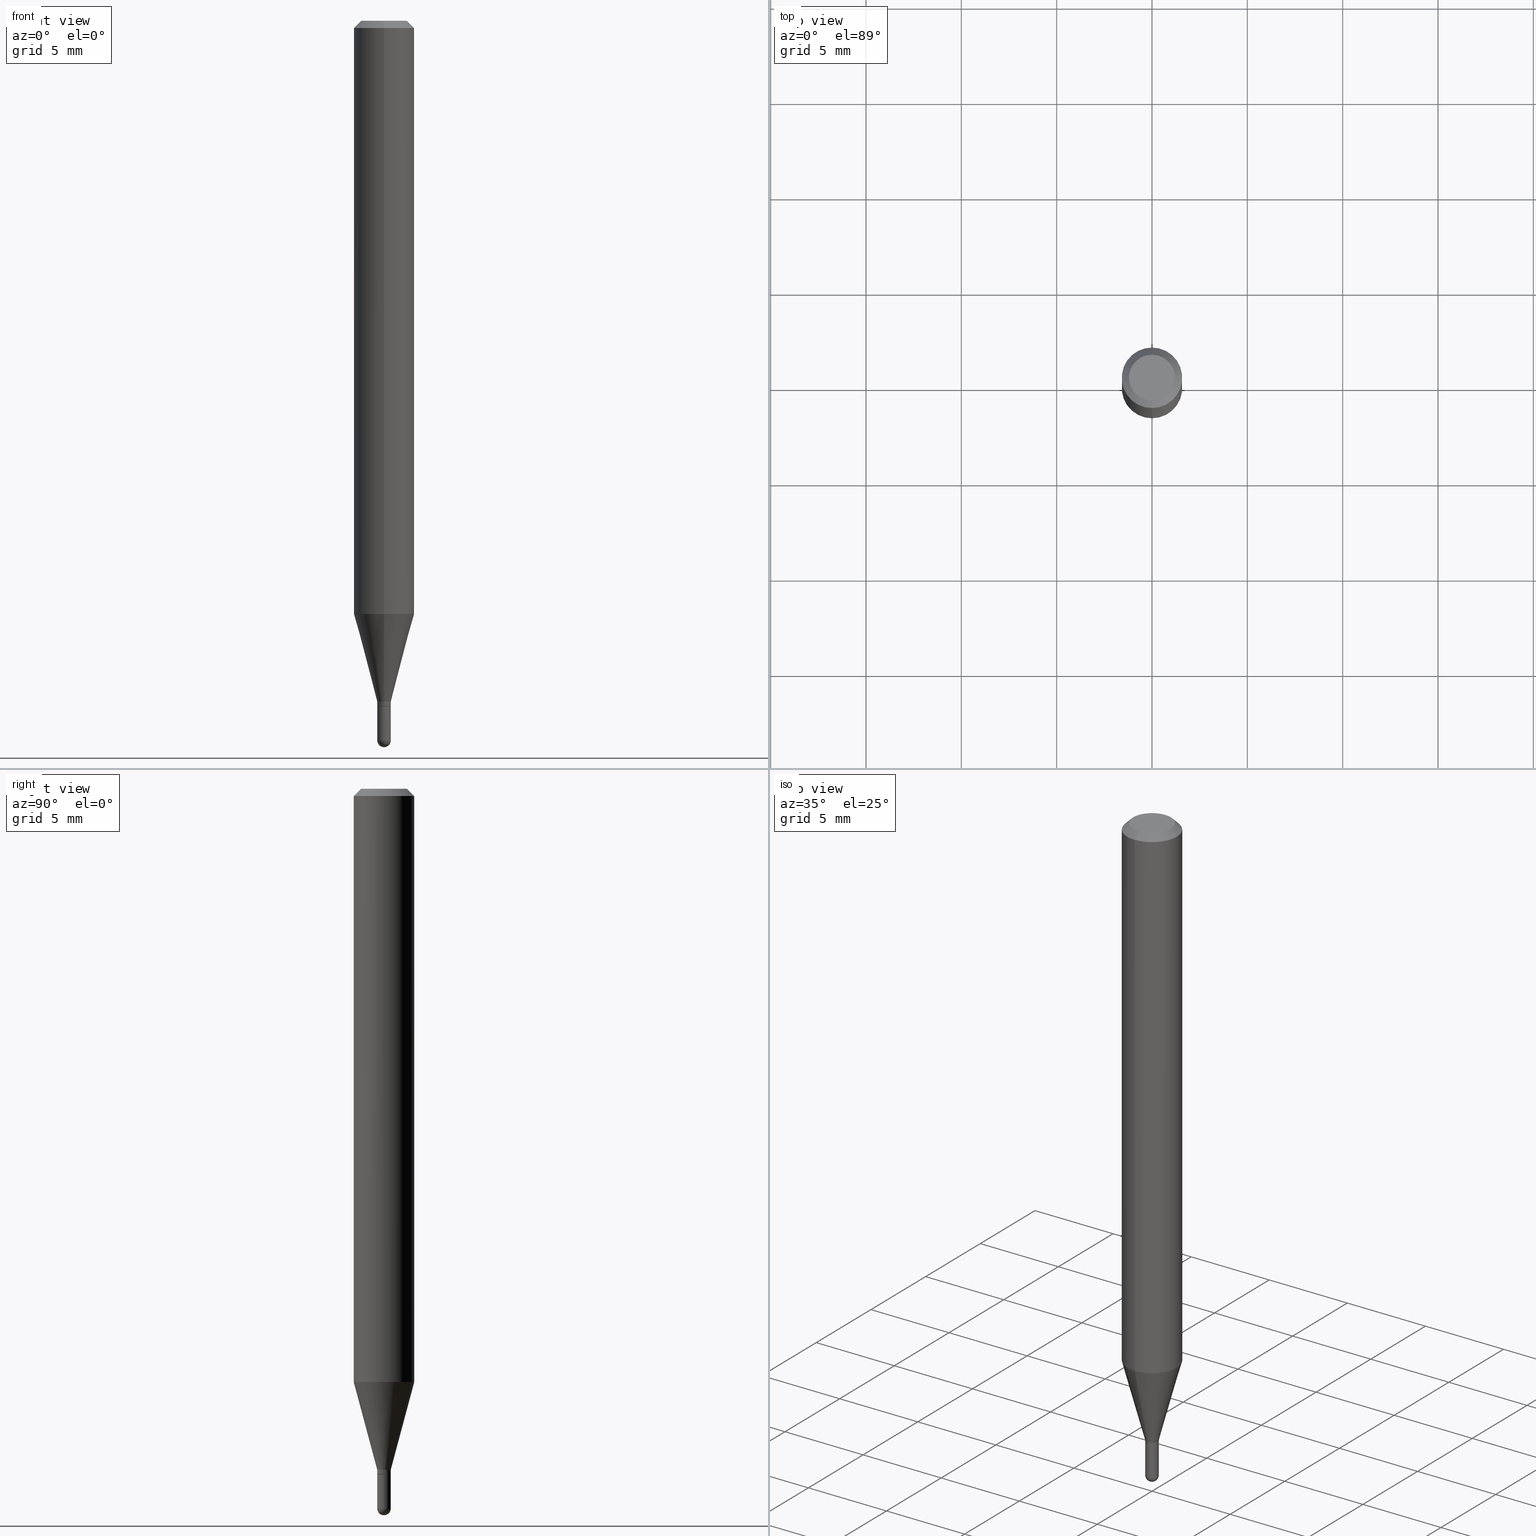
[diagram: canonical four-view strip — front | top / right | iso, engineering-drawing reading convention]
A machine part, canonical four-view strip (front | top / right | iso — engineering-drawing reading convention). The complete STEP part file that produces these views, byte-faithful:
ISO-10303-21;
HEADER;
FILE_DESCRIPTION (( 'STEP AP203' ),
    '1' );
FILE_NAME ('03126.STEP',
    '2024-03-08T18:16:44',
    ( '' ),
    ( '' ),
    'SwSTEP 2.0',
    'SolidWorks 2023',
    '' );
FILE_SCHEMA (( 'CONFIG_CONTROL_DESIGN' ));
ENDSEC;

DATA;
#1 = ADVANCED_FACE ( 'NONE', ( #456 ), #380, .T. ) ;
#2 = CONICAL_SURFACE ( 'NONE', #132, 0.01399999999999992396, 0.2617993877991504625 ) ;
#3 = AXIS2_PLACEMENT_3D ( 'NONE', #291, #495, #148 ) ;
#4 = AXIS2_PLACEMENT_3D ( 'NONE', #506, #35, #8 ) ;
#5 = EDGE_CURVE ( 'NONE', #348, #390, #247, .T. ) ;
#6 = PERSON_AND_ORGANIZATION_ROLE ( 'creator' ) ;
#7 = CALENDAR_DATE ( 2024, 8, 3 ) ;
#8 = DIRECTION ( 'NONE',  ( 1.000000000000000000, 0.000000000000000000, 0.000000000000000000 ) ) ;
#9 = CYLINDRICAL_SURFACE ( 'NONE', #173, 0.06250000000000000000 ) ;
#10 = ADVANCED_FACE ( 'NONE', ( #165 ), #117, .T. ) ;
#11 = DIRECTION ( 'NONE',  ( -2.445454428585171243E-29, 3.491501928384618052E-15, 1.000000000000000000 ) ) ;
#12 = VECTOR ( 'NONE', #136, 39.37007874015748143 ) ;
#13 = FACE_OUTER_BOUND ( 'NONE', #307, .T. ) ;
#14 = ORIENTED_EDGE ( 'NONE', *, *, #95, .F. ) ;
#15 = DIRECTION ( 'NONE',  ( -6.982962677686265133E-15, -1.000000000000000000, 0.000000000000000000 ) ) ;
#16 = ORIENTED_EDGE ( 'NONE', *, *, #434, .F. ) ;
#17 = MANIFOLD_SOLID_BREP ( 'Body-Move/Copy2[1]', #224 ) ;
#18 = ORIENTED_EDGE ( 'NONE', *, *, #102, .T. ) ;
#19 = CARTESIAN_POINT ( 'NONE',  ( 4.440892098500625669E-16, 0.06250000000000000000, -2.182188705240386283E-16 ) ) ;
#20 = ORIENTED_EDGE ( 'NONE', *, *, #436, .F. ) ;
#21 = FACE_OUTER_BOUND ( 'NONE', #206, .T. ) ;
#22 = EDGE_LOOP ( 'NONE', ( #293, #309 ) ) ;
#23 = DIRECTION ( 'NONE',  ( -6.982962677686266711E-15, -1.000000000000000000, 3.491501928384618447E-15 ) ) ;
#24 = AXIS2_PLACEMENT_3D ( 'NONE', #116, #32, #268 ) ;
#25 = ORIENTED_EDGE ( 'NONE', *, *, #171, .F. ) ;
#26 = AXIS2_PLACEMENT_3D ( 'NONE', #157, #84, #354 ) ;
#27 = CC_DESIGN_APPROVAL ( #204, ( #449 ) ) ;
#28 = CARTESIAN_POINT ( 'NONE',  ( 3.462763470876603465E-29, -4.943966730592620263E-15, -1.416000000000000147 ) ) ;
#29 = FACE_OUTER_BOUND ( 'NONE', #188, .T. ) ;
#30 = FACE_OUTER_BOUND ( 'NONE', #46, .T. ) ;
#31 = EDGE_CURVE ( 'NONE', #114, #325, #388, .T. ) ;
#32 = DIRECTION ( 'NONE',  ( -2.445468806185136597E-29, 3.491481338843145583E-15, 1.000000000000000000 ) ) ;
#33 = CARTESIAN_POINT ( 'NONE',  ( 0.000000000000000000, 0.000000000000000000, 0.000000000000000000 ) ) ;
#34 = CARTESIAN_POINT ( 'NONE',  ( 3.438308926590751733E-29, -4.909051711308774725E-15, -1.406000000000000139 ) ) ;
#35 = DIRECTION ( 'NONE',  ( 0.000000000000000000, 0.000000000000000000, 1.000000000000000000 ) ) ;
#36 = DIRECTION ( 'NONE',  ( -6.982962677686265133E-15, -1.000000000000000000, 0.000000000000000000 ) ) ;
#37 = VECTOR ( 'NONE', #507, 39.37007874015748854 ) ;
#38 = CIRCLE ( 'NONE', #389, 0.04749999999999999362 ) ;
#39 = DIRECTION ( 'NONE',  ( -2.445454428585171243E-29, 3.491501928384618052E-15, 1.000000000000000000 ) ) ;
#40 = EDGE_CURVE ( 'NONE', #512, #209, #125, .T. ) ;
#41 = ORIENTED_EDGE ( 'NONE', *, *, #420, .T. ) ;
#42 = EDGE_CURVE ( 'NONE', #473, #466, #207, .T. ) ;
#43 = CARTESIAN_POINT ( 'NONE',  ( 3.462763470876603465E-29, -4.943966730592620263E-15, -1.416000000000000147 ) ) ;
#44 = ORIENTED_EDGE ( 'NONE', *, *, #371, .F. ) ;
#45 = CIRCLE ( 'NONE', #60, 0.01399999999999981815 ) ;
#46 = EDGE_LOOP ( 'NONE', ( #274, #161, #186, #340 ) ) ;
#47 = ORIENTED_EDGE ( 'NONE', *, *, #176, .F. ) ;
#48 = PLANE ( 'NONE',  #432 ) ;
#49 = APPROVAL ( #278, 'UNSPECIFIED' ) ;
#50 = MECHANICAL_CONTEXT ( 'NONE', #72, 'mechanical' ) ;
#51 = CARTESIAN_POINT ( 'NONE',  ( 3.666407360070428684E-29, -5.239793766542928315E-15, -1.500000000000000222 ) ) ;
#52 = AXIS2_PLACEMENT_3D ( 'NONE', #92, #147, #492 ) ;
#53 = DESIGN_CONTEXT ( 'detailed design', #122, 'design' ) ;
#54 = DIRECTION ( 'NONE',  ( -2.445454428585171243E-29, 3.491501928384618052E-15, 1.000000000000000000 ) ) ;
#55 = APPLICATION_PROTOCOL_DEFINITION ( 'international standard', 'config_control_design', 1994, #72 ) ;
#56 = CARTESIAN_POINT ( 'NONE',  ( 3.840629472727447874E-16, 0.04749999999999999362, 7.364327909283748346E-17 ) ) ;
#57 = EDGE_CURVE ( 'NONE', #195, #335, #233, .T. ) ;
#58 = DATE_AND_TIME ( #399, #87 ) ;
#59 = CARTESIAN_POINT ( 'NONE',  ( 0.01400000000000000203, -5.041699053289501888E-15, -1.416000000000000147 ) ) ;
#60 = AXIS2_PLACEMENT_3D ( 'NONE', #386, #330, #153 ) ;
#61 = CARTESIAN_POINT ( 'NONE',  ( 9.947598300641348575E-17, 0.01399999999999992743, -4.888102699738439112E-17 ) ) ;
#62 = DIRECTION ( 'NONE',  ( -4.851104656540964275E-15, -0.7071067811865500152, -0.7071067811865450192 ) ) ;
#63 = CC_DESIGN_DATE_AND_TIME_ASSIGNMENT ( #135, #277, ( #353 ) ) ;
#64 = CARTESIAN_POINT ( 'NONE',  ( -0.01400000000000000203, 9.947598300641404042E-17, -6.886509126356868606E-31 ) ) ;
#65 = EDGE_LOOP ( 'NONE', ( #383, #379, #16, #66 ) ) ;
#66 = ORIENTED_EDGE ( 'NONE', *, *, #310, .F. ) ;
#67 = DIRECTION ( 'NONE',  ( -2.445454428585171243E-29, 3.491501928384618052E-15, 1.000000000000000000 ) ) ;
#68 = CARTESIAN_POINT ( 'NONE',  ( -5.856609535192501225E-45, 8.361784724711001985E-31, 2.394896206911068316E-16 ) ) ;
#69 = ORIENTED_EDGE ( 'NONE', *, *, #509, .T. ) ;
#70 = DIRECTION ( 'NONE',  ( -6.982962677686265922E-15, -1.000000000000000000, 3.491501928384618052E-15 ) ) ;
#71 = CARTESIAN_POINT ( 'NONE',  ( 3.462783829558154044E-29, -4.943937575801894533E-15, -1.416000000000000147 ) ) ;
#72 = APPLICATION_CONTEXT ( 'configuration controlled 3d designs of mechanical parts and assemblies' ) ;
#73 = DIRECTION ( 'NONE',  ( -2.445454428585171243E-29, 3.491501928384618052E-15, 1.000000000000000000 ) ) ;
#74 = AXIS2_PLACEMENT_3D ( 'NONE', #34, #378, #504 ) ;
#75 = ORGANIZATION ( 'UNSPECIFIED', 'UNSPECIFIED', '' ) ;
#76 = EDGE_CURVE ( 'NONE', #272, #130, #453, .T. ) ;
#77 = DIRECTION ( 'NONE',  ( 1.000000000000000000, -6.982962677686266711E-15, 4.876176775795935232E-29 ) ) ;
#78 = ORIENTED_EDGE ( 'NONE', *, *, #355, .T. ) ;
#79 = FACE_OUTER_BOUND ( 'NONE', #159, .T. ) ;
#80 = ADVANCED_FACE ( 'NONE', ( #144 ), #98, .F. ) ;
#81 = ORIENTED_EDGE ( 'NONE', *, *, #429, .T. ) ;
#82 = DIRECTION ( 'NONE',  ( -6.982962677686265133E-15, -1.000000000000000000, 0.000000000000000000 ) ) ;
#83 = ORIENTED_EDGE ( 'NONE', *, *, #328, .T. ) ;
#84 = DIRECTION ( 'NONE',  ( -2.445468806185136597E-29, 3.491481338843145583E-15, 1.000000000000000000 ) ) ;
#85 = CONICAL_SURFACE ( 'NONE', #360, 0.06250000000000000000, 0.7853981633974483900 ) ;
#86 = CARTESIAN_POINT ( 'NONE',  ( 4.364351673553919652E-16, 0.06249999999999995143, -0.01499999999999997863 ) ) ;
#87 = LOCAL_TIME ( 13, 16, 44.00000000000000000, #400 ) ;
#88 = EDGE_CURVE ( 'NONE', #465, #124, #312, .T. ) ;
#89 = AXIS2_PLACEMENT_3D ( 'NONE', #175, #326, #483 ) ;
#90 = VECTOR ( 'NONE', #339, 39.37007874015748143 ) ;
#91 = ADVANCED_FACE ( 'NONE', ( #488 ), #2, .T. ) ;
#92 = CARTESIAN_POINT ( 'NONE',  ( 3.668181642877698501E-31, -5.237252892576844199E-17, -0.01499999999999976179 ) ) ;
#93 = CARTESIAN_POINT ( 'NONE',  ( 2.717825964282703634E-16, 0.01399999999999501643, -1.406000000000000139 ) ) ;
#94 = APPROVAL_ROLE ( '' ) ;
#95 = EDGE_CURVE ( 'NONE', #325, #114, #163, .T. ) ;
#96 = APPROVAL_DATE_TIME ( #444, #49 ) ;
#97 = APPROVAL_PERSON_ORGANIZATION ( #362, #443, #137 ) ;
#98 = PLANE ( 'NONE',  #150 ) ;
#99 = APPROVAL_DATE_TIME ( #365, #443 ) ;
#100 = DIRECTION ( 'NONE',  ( -2.445454428585171243E-29, 3.491501928384618052E-15, 1.000000000000000000 ) ) ;
#101 = DIRECTION ( 'NONE',  ( -2.445454428585170963E-29, 3.491501928384618052E-15, 1.000000000000000000 ) ) ;
#102 = EDGE_CURVE ( 'NONE', #390, #473, #358, .T. ) ;
#103 = AXIS2_PLACEMENT_3D ( 'NONE', #338, #503, #297 ) ;
#104 = AXIS2_PLACEMENT_3D ( 'NONE', #43, #143, #248 ) ;
#105 = DIRECTION ( 'NONE',  ( -6.982962677686265133E-15, -1.000000000000000000, 3.491501928384617658E-15 ) ) ;
#106 = APPROVAL_PERSON_ORGANIZATION ( #319, #204, #279 ) ;
#107 = LINE ( 'NONE', #490, #322 ) ;
#108 = ORIENTED_EDGE ( 'NONE', *, *, #76, .T. ) ;
#109 = ORIENTED_EDGE ( 'NONE', *, *, #342, .T. ) ;
#110 = CARTESIAN_POINT ( 'NONE',  ( 3.668181642877698501E-31, -5.237252892576844199E-17, -0.01499999999999976179 ) ) ;
#111 = ORIENTED_EDGE ( 'NONE', *, *, #394, .F. ) ;
#112 = CARTESIAN_POINT ( 'NONE',  ( 0.000000000000000000, 0.000000000000000000, 0.000000000000000000 ) ) ;
#113 = ORIENTED_EDGE ( 'NONE', *, *, #5, .F. ) ;
#114 = VERTEX_POINT ( 'NONE', #59 ) ;
#115 = ADVANCED_FACE ( 'NONE', ( #13 ), #489, .F. ) ;
#116 = CARTESIAN_POINT ( 'NONE',  ( 3.633966645991114301E-29, -5.188341269520916077E-15, -1.486000000000000432 ) ) ;
#117 = CONICAL_SURFACE ( 'NONE', #190, 0.01350000000000000158, 0.7853981633974739252 ) ;
#118 = DIRECTION ( 'NONE',  ( -6.982962677686265133E-15, -1.000000000000000000, 0.000000000000000000 ) ) ;
#119 = AXIS2_PLACEMENT_3D ( 'NONE', #258, #198, #413 ) ;
#120 = ORIENTED_EDGE ( 'NONE', *, *, #166, .F. ) ;
#121 = APPROVAL_PERSON_ORGANIZATION ( #442, #49, #94 ) ;
#122 = APPLICATION_CONTEXT ( 'configuration controlled 3d designs of mechanical parts and assemblies' ) ;
#123 = CARTESIAN_POINT ( 'NONE',  ( -5.856609535192501225E-45, 8.361784724711001985E-31, 2.394896206911068316E-16 ) ) ;
#124 = VERTEX_POINT ( 'NONE', #480 ) ;
#125 = CIRCLE ( 'NONE', #103, 0.06250000000000000000 ) ;
#126 = DIRECTION ( 'NONE',  ( -2.445454428585170963E-29, 3.491501928384618052E-15, 1.000000000000000000 ) ) ;
#127 = DIRECTION ( 'NONE',  ( 1.000000000000000000, -6.982962677686265922E-15, 4.883557194083112340E-29 ) ) ;
#128 = EDGE_CURVE ( 'NONE', #465, #162, #181, .T. ) ;
#129 = CARTESIAN_POINT ( 'NONE',  ( 9.947598300644785050E-17, 0.01399999999999501643, -1.406000000000000139 ) ) ;
#130 = VERTEX_POINT ( 'NONE', #220 ) ;
#131 = DIRECTION ( 'NONE',  ( -6.982962677686265922E-15, -1.000000000000000000, 4.370956789862821150E-15 ) ) ;
#132 = AXIS2_PLACEMENT_3D ( 'NONE', #141, #100, #251 ) ;
#133 = AXIS2_PLACEMENT_3D ( 'NONE', #344, #303, #82 ) ;
#134 = ORIENTED_EDGE ( 'NONE', *, *, #249, .T. ) ;
#135 = DATE_AND_TIME ( #439, #486 ) ;
#136 = DIRECTION ( 'NONE',  ( -4.937700262164674260E-15, -0.7071067811865632269, 0.7071067811865319186 ) ) ;
#137 = APPROVAL_ROLE ( '' ) ;
#138 = DIRECTION ( 'NONE',  ( -6.982962677686266711E-15, -1.000000000000000000, 3.491501928384618447E-15 ) ) ;
#139 = COORDINATED_UNIVERSAL_TIME_OFFSET ( 5, 0, .BEHIND. ) ;
#140 = AXIS2_PLACEMENT_3D ( 'NONE', #415, #67, #226 ) ;
#141 = CARTESIAN_POINT ( 'NONE',  ( 3.438308926590751733E-29, -4.909051711308774725E-15, -1.406000000000000139 ) ) ;
#142 = PERSON_AND_ORGANIZATION_ROLE ( 'design_owner' ) ;
#143 = DIRECTION ( 'NONE',  ( -2.445454428585171243E-29, 3.491501928384618052E-15, 1.000000000000000000 ) ) ;
#144 = FACE_OUTER_BOUND ( 'NONE', #257, .T. ) ;
#145 = VERTEX_POINT ( 'NONE', #51 ) ;
#146 = CC_DESIGN_PERSON_AND_ORGANIZATION_ASSIGNMENT ( #479, #211, ( #447 ) ) ;
#147 = DIRECTION ( 'NONE',  ( -2.445454428585171243E-29, 3.491501928384618052E-15, 1.000000000000000000 ) ) ;
#148 = DIRECTION ( 'NONE',  ( -6.982962677686265133E-15, -1.000000000000000000, 0.000000000000000000 ) ) ;
#149 = VERTEX_POINT ( 'NONE', #370 ) ;
#150 = AXIS2_PLACEMENT_3D ( 'NONE', #440, #324, #320 ) ;
#151 = CIRCLE ( 'NONE', #119, 0.01399999999999981815 ) ;
#152 = EDGE_LOOP ( 'NONE', ( #350, #83, #223, #493 ) ) ;
#153 = DIRECTION ( 'NONE',  ( -6.982962677686265133E-15, -1.000000000000000000, 0.000000000000000000 ) ) ;
#154 = DIRECTION ( 'NONE',  ( 2.445454428585171243E-29, -3.491501928384618052E-15, -1.000000000000000000 ) ) ;
#155 = EDGE_CURVE ( 'NONE', #149, #335, #267, .T. ) ;
#156 = EDGE_LOOP ( 'NONE', ( #332, #284, #505, #311 ) ) ;
#157 = CARTESIAN_POINT ( 'NONE',  ( 0.000000000000000000, 0.000000000000000000, 0.000000000000000000 ) ) ;
#158 = DIRECTION ( 'NONE',  ( -2.445468806185136877E-29, 3.491481338843145188E-15, 1.000000000000000000 ) ) ;
#159 = EDGE_LOOP ( 'NONE', ( #134, #41, #183, #44 ) ) ;
#160 = DIRECTION ( 'NONE',  ( -2.445454428585171243E-29, 3.491501928384618052E-15, 1.000000000000000000 ) ) ;
#161 = ORIENTED_EDGE ( 'NONE', *, *, #176, .T. ) ;
#162 = VERTEX_POINT ( 'NONE', #93 ) ;
#163 = CIRCLE ( 'NONE', #286, 0.01400000000000000203 ) ;
#164 = ADVANCED_BREP_SHAPE_REPRESENTATION ( '03126', ( #17, #205, #4 ), #496 ) ;
#165 = FACE_OUTER_BOUND ( 'NONE', #242, .T. ) ;
#166 = EDGE_CURVE ( 'NONE', #237, #124, #245, .T. ) ;
#167 = AXIS2_PLACEMENT_3D ( 'NONE', #28, #39, #36 ) ;
#168 = AXIS2_PLACEMENT_3D ( 'NONE', #261, #73, #327 ) ;
#169 = LOCAL_TIME ( 13, 16, 44.00000000000000000, #246 ) ;
#170 = ADVANCED_FACE ( 'NONE', ( #318 ), #426, .T. ) ;
#171 = EDGE_CURVE ( 'NONE', #124, #465, #275, .T. ) ;
#172 = FACE_OUTER_BOUND ( 'NONE', #22, .T. ) ;
#173 = AXIS2_PLACEMENT_3D ( 'NONE', #502, #296, #70 ) ;
#174 = COORDINATED_UNIVERSAL_TIME_OFFSET ( 5, 0, .BEHIND. ) ;
#175 = CARTESIAN_POINT ( 'NONE',  ( 3.461540743662310234E-29, -4.942220979628426685E-15, -1.415500000000000203 ) ) ;
#176 = EDGE_CURVE ( 'NONE', #130, #209, #410, .T. ) ;
#177 = DIRECTION ( 'NONE',  ( -6.982962677686265922E-15, -1.000000000000000000, 4.370956789862821150E-15 ) ) ;
#178 = CALENDAR_DATE ( 2024, 8, 3 ) ;
#179 = AXIS2_PLACEMENT_3D ( 'NONE', #112, #229, #77 ) ;
#180 = PERSON_AND_ORGANIZATION ( #270, #75 ) ;
#181 = LINE ( 'NONE', #61, #331 ) ;
#182 = CC_DESIGN_PERSON_AND_ORGANIZATION_ASSIGNMENT ( #364, #6, ( #449 ) ) ;
#183 = ORIENTED_EDGE ( 'NONE', *, *, #271, .F. ) ;
#184 = CARTESIAN_POINT ( 'NONE',  ( 2.995670758099655086E-29, -4.277074275623154281E-15, -1.224995535832910099 ) ) ;
#185 = DIRECTION ( 'NONE',  ( 6.982962677686265922E-15, 1.000000000000000000, -3.483106191921935554E-15 ) ) ;
#186 = ORIENTED_EDGE ( 'NONE', *, *, #271, .T. ) ;
#187 = DIRECTION ( 'NONE',  ( -2.445468806185136597E-29, 3.491481338843145583E-15, 1.000000000000000000 ) ) ;
#188 = EDGE_LOOP ( 'NONE', ( #329, #430, #372, #254 ) ) ;
#189 = CARTESIAN_POINT ( 'NONE',  ( 4.440892098500927901E-16, 0.06249999999999995837, -0.01499999999999997863 ) ) ;
#190 = AXIS2_PLACEMENT_3D ( 'NONE', #377, #460, #418 ) ;
#191 = CIRCLE ( 'NONE', #74, 0.01399999999999992396 ) ;
#192 = ORIENTED_EDGE ( 'NONE', *, *, #128, .F. ) ;
#193 = LOCAL_TIME ( 13, 16, 44.00000000000000000, #139 ) ;
#194 = DIRECTION ( 'NONE',  ( -2.445454428585171243E-29, 3.491501928384618052E-15, 1.000000000000000000 ) ) ;
#195 = VERTEX_POINT ( 'NONE', #374 ) ;
#196 = DIRECTION ( 'NONE',  ( 1.000000000000000000, -6.982962677686262766E-15, 0.000000000000000000 ) ) ;
#197 = CARTESIAN_POINT ( 'NONE',  ( 9.769962616704812848E-17, 0.01349999999999505935, -1.416000000000000147 ) ) ;
#198 = DIRECTION ( 'NONE',  ( 1.000000000000000000, -7.105427357601001070E-15, 4.926315508542082329E-29 ) ) ;
#199 = ORIENTED_EDGE ( 'NONE', *, *, #5, .T. ) ;
#200 = DIRECTION ( 'NONE',  ( -2.445454428585171243E-29, 3.491501928384618052E-15, 1.000000000000000000 ) ) ;
#201 = LINE ( 'NONE', #227, #301 ) ;
#202 = DIRECTION ( 'NONE',  ( -2.445468806185136597E-29, 3.491481338843145583E-15, 1.000000000000000000 ) ) ;
#203 = AXIS2_PLACEMENT_3D ( 'NONE', #298, #194, #118 ) ;
#204 = APPROVAL ( #487, 'UNSPECIFIED' ) ;
#205 = MANIFOLD_SOLID_BREP ( 'Body-Move/Copy2[2]', #366 ) ;
#206 = EDGE_LOOP ( 'NONE', ( #111, #469, #501, #78, #14 ) ) ;
#207 = CIRCLE ( 'NONE', #24, 0.01400000000000000203 ) ;
#208 = VECTOR ( 'NONE', #458, 39.37007874015748143 ) ;
#209 = VERTEX_POINT ( 'NONE', #290 ) ;
#210 = ADVANCED_FACE ( 'NONE', ( #457 ), #419, .T. ) ;
#211 = PERSON_AND_ORGANIZATION_ROLE ( 'design_supplier' ) ;
#212 = DIRECTION ( 'NONE',  ( -2.445468806185136597E-29, 3.491481338843145583E-15, 1.000000000000000000 ) ) ;
#213 = CARTESIAN_POINT ( 'NONE',  ( -9.776147748757074722E-17, -0.01400000000000510038, -1.486000000000000432 ) ) ;
#214 = ORIENTED_EDGE ( 'NONE', *, *, #455, .T. ) ;
#215 = APPROVAL_STATUS ( 'not_yet_approved' ) ;
#216 = DIRECTION ( 'NONE',  ( 1.000000000000000000, -6.982962677686265922E-15, 4.883557194083112340E-29 ) ) ;
#217 = ADVANCED_FACE ( 'NONE', ( #333 ), #499, .T. ) ;
#218 = CARTESIAN_POINT ( 'NONE',  ( 3.316907271900976096E-16, 0.04749999999999999362, -4.610153125271590767E-17 ) ) ;
#219 = CIRCLE ( 'NONE', #255, 0.06250000000000000000 ) ;
#220 = CARTESIAN_POINT ( 'NONE',  ( -3.773273898774340269E-16, -0.04749999999999999362, 4.053359622893761920E-16 ) ) ;
#221 = EDGE_LOOP ( 'NONE', ( #422, #214, #498, #302 ) ) ;
#222 = LINE ( 'NONE', #19, #90 ) ;
#223 = ORIENTED_EDGE ( 'NONE', *, *, #42, .F. ) ;
#224 = CLOSED_SHELL ( 'NONE', ( #217, #260, #80, #441, #484 ) ) ;
#225 = ORIENTED_EDGE ( 'NONE', *, *, #240, .T. ) ;
#226 = DIRECTION ( 'NONE',  ( -6.982962677686265133E-15, -1.000000000000000000, 3.491501928384617658E-15 ) ) ;
#227 = CARTESIAN_POINT ( 'NONE',  ( 0.01400000000000000203, -9.776147748760774973E-17, 6.826647486114310706E-31 ) ) ;
#228 = ORIENTED_EDGE ( 'NONE', *, *, #316, .T. ) ;
#229 = DIRECTION ( 'NONE',  ( -2.445468806185136597E-29, 3.491481338843145583E-15, 1.000000000000000000 ) ) ;
#230 = AXIS2_PLACEMENT_3D ( 'NONE', #123, #11, #138 ) ;
#231 = ORIENTED_EDGE ( 'NONE', *, *, #76, .F. ) ;
#232 = LINE ( 'NONE', #384, #446 ) ;
#233 = LINE ( 'NONE', #385, #37 ) ;
#234 = DIRECTION ( 'NONE',  ( -2.445454428585170963E-29, 3.491501928384618052E-15, 1.000000000000000000 ) ) ;
#235 = ADVANCED_FACE ( 'NONE', ( #172 ), #48, .F. ) ;
#236 = ORIENTED_EDGE ( 'NONE', *, *, #328, .F. ) ;
#237 = VERTEX_POINT ( 'NONE', #304 ) ;
#238 = CARTESIAN_POINT ( 'NONE',  ( 3.462763470876603465E-29, -4.943966730592620263E-15, -1.416000000000000147 ) ) ;
#239 = VECTOR ( 'NONE', #349, 39.37007874015748854 ) ;
#240 = EDGE_CURVE ( 'NONE', #272, #512, #467, .T. ) ;
#241 = AXIS2_PLACEMENT_3D ( 'NONE', #308, #127, #397 ) ;
#242 = EDGE_LOOP ( 'NONE', ( #109, #273, #25, #120 ) ) ;
#243 = FACE_OUTER_BOUND ( 'NONE', #152, .T. ) ;
#244 = CC_DESIGN_PERSON_AND_ORGANIZATION_ASSIGNMENT ( #357, #142, ( #475 ) ) ;
#245 = LINE ( 'NONE', #359, #12 ) ;
#246 = COORDINATED_UNIVERSAL_TIME_OFFSET ( 5, 0, .BEHIND. ) ;
#247 = CIRCLE ( 'NONE', #321, 0.01400000000000000203 ) ;
#248 = DIRECTION ( 'NONE',  ( -6.982962677686265133E-15, -1.000000000000000000, 0.000000000000000000 ) ) ;
#249 = EDGE_CURVE ( 'NONE', #335, #149, #219, .T. ) ;
#250 = COORDINATED_UNIVERSAL_TIME_OFFSET ( 5, 0, .BEHIND. ) ;
#251 = DIRECTION ( 'NONE',  ( -6.982962677686265133E-15, -1.000000000000000000, 0.000000000000000000 ) ) ;
#252 = PERSON_AND_ORGANIZATION_ROLE ( 'creator' ) ;
#253 = DIRECTION ( 'NONE',  ( 1.000000000000000000, -6.982962677686262766E-15, 0.000000000000000000 ) ) ;
#254 = ORIENTED_EDGE ( 'NONE', *, *, #57, .F. ) ;
#255 = AXIS2_PLACEMENT_3D ( 'NONE', #393, #435, #131 ) ;
#256 = CARTESIAN_POINT ( 'NONE',  ( -0.01400000000000000203, -4.966663439654990402E-15, -1.416000000000000147 ) ) ;
#257 = EDGE_LOOP ( 'NONE', ( #471, #511 ) ) ;
#258 = CARTESIAN_POINT ( 'NONE',  ( 3.632769413186262372E-29, -5.190055775039722047E-15, -1.486000000000000210 ) ) ;
#259 = EDGE_LOOP ( 'NONE', ( #47, #231, #225, #474 ) ) ;
#260 = ADVANCED_FACE ( 'NONE', ( #477 ), #317, .T. ) ;
#261 = CARTESIAN_POINT ( 'NONE',  ( 0.000000000000000000, 0.000000000000000000, 0.000000000000000000 ) ) ;
#262 =( CONVERSION_BASED_UNIT ( 'INCH', #292 ) LENGTH_UNIT ( ) NAMED_UNIT ( #391 ) );
#263 = ORIENTED_EDGE ( 'NONE', *, *, #355, .F. ) ;
#264 = DIRECTION ( 'NONE',  ( 2.445454428585171243E-29, -3.491501928384618052E-15, -1.000000000000000000 ) ) ;
#265 = EDGE_LOOP ( 'NONE', ( #236, #69, #113, #295 ) ) ;
#266 = CIRCLE ( 'NONE', #3, 0.01350000000000000158 ) ;
#267 = CIRCLE ( 'NONE', #437, 0.06250000000000000000 ) ;
#268 = DIRECTION ( 'NONE',  ( 1.000000000000000000, -6.982962677686262766E-15, 0.000000000000000000 ) ) ;
#269 = FACE_OUTER_BOUND ( 'NONE', #259, .T. ) ;
#270 = PERSON ( 'UNSPECIFIED', 'UNSPECIFIED', 'UNSPECIFIED', ('UNSPECIFIED'), ('UNSPECIFIED'), ('UNSPECIFIED') ) ;
#271 = EDGE_CURVE ( 'NONE', #209, #512, #470, .T. ) ;
#272 = VERTEX_POINT ( 'NONE', #56 ) ;
#273 = ORIENTED_EDGE ( 'NONE', *, *, #407, .T. ) ;
#274 = ORIENTED_EDGE ( 'NONE', *, *, #429, .F. ) ;
#275 = CIRCLE ( 'NONE', #133, 0.01399999999999992743 ) ;
#276 = EDGE_CURVE ( 'NONE', #466, #348, #395, .T. ) ;
#277 = DATE_TIME_ROLE ( 'classification_date' ) ;
#278 = APPROVAL_STATUS ( 'not_yet_approved' ) ;
#279 = APPROVAL_ROLE ( '' ) ;
#280 = CARTESIAN_POINT ( 'NONE',  ( 3.462783829558154044E-29, -4.943937575801894533E-15, -1.416000000000000147 ) ) ;
#281 = APPROVAL_DATE_TIME ( #58, #204 ) ;
#282 = CARTESIAN_POINT ( 'NONE',  ( 3.633966645991114301E-29, -5.188341269520916077E-15, -1.486000000000000432 ) ) ;
#283 = CARTESIAN_POINT ( 'NONE',  ( 0.01400000000000000203, -5.163900900149012660E-15, -1.486000000000000432 ) ) ;
#284 = ORIENTED_EDGE ( 'NONE', *, *, #155, .T. ) ;
#285 = ADVANCED_FACE ( 'NONE', ( #269 ), #402, .T. ) ;
#286 = AXIS2_PLACEMENT_3D ( 'NONE', #280, #212, #253 ) ;
#287 = CARTESIAN_POINT ( 'NONE',  ( 9.947598300644776422E-17, 0.01399999999999493837, -1.415500000000000203 ) ) ;
#288 = LOCAL_TIME ( 13, 16, 44.00000000000000000, #174 ) ;
#289 = ORIENTED_EDGE ( 'NONE', *, *, #394, .T. ) ;
#290 = CARTESIAN_POINT ( 'NONE',  ( -4.364351673553912750E-16, -0.06250000000000005551, -0.01499999999999954321 ) ) ;
#291 = CARTESIAN_POINT ( 'NONE',  ( 3.462763470876603465E-29, -4.943966730592620263E-15, -1.416000000000000147 ) ) ;
#292 = LENGTH_MEASURE_WITH_UNIT ( LENGTH_MEASURE( 0.02539999999999999897 ), #376 );
#293 = ORIENTED_EDGE ( 'NONE', *, *, #342, .F. ) ;
#294 = LINE ( 'NONE', #461, #208 ) ;
#295 = ORIENTED_EDGE ( 'NONE', *, *, #276, .F. ) ;
#296 = DIRECTION ( 'NONE',  ( -2.445454428585171243E-29, 3.491501928384618052E-15, 1.000000000000000000 ) ) ;
#297 = DIRECTION ( 'NONE',  ( -6.982962677686265922E-15, -1.000000000000000000, 3.483106191921935554E-15 ) ) ;
#298 = CARTESIAN_POINT ( 'NONE',  ( 3.438308926590751733E-29, -4.909051711308774725E-15, -1.406000000000000139 ) ) ;
#299 = ORIENTED_EDGE ( 'NONE', *, *, #316, .F. ) ;
#300 = ADVANCED_FACE ( 'NONE', ( #79 ), #421, .T. ) ;
#301 = VECTOR ( 'NONE', #508, 39.37007874015748143 ) ;
#302 = ORIENTED_EDGE ( 'NONE', *, *, #88, .F. ) ;
#303 = DIRECTION ( 'NONE',  ( -2.445454428585171243E-29, 3.491501928384618052E-15, 1.000000000000000000 ) ) ;
#304 = CARTESIAN_POINT ( 'NONE',  ( -9.426999614872997108E-17, -0.01350000000000494554, -1.416000000000000147 ) ) ;
#305 = EDGE_LOOP ( 'NONE', ( #18, #289, #412, #263, #199 ) ) ;
#306 = AXIS2_PLACEMENT_3D ( 'NONE', #110, #264, #185 ) ;
#307 = EDGE_LOOP ( 'NONE', ( #108, #81 ) ) ;
#308 = CARTESIAN_POINT ( 'NONE',  ( 3.632769413186262372E-29, -5.190055775039722047E-15, -1.486000000000000210 ) ) ;
#309 = ORIENTED_EDGE ( 'NONE', *, *, #455, .F. ) ;
#310 = EDGE_CURVE ( 'NONE', #124, #195, #232, .T. ) ;
#311 = ORIENTED_EDGE ( 'NONE', *, *, #40, .F. ) ;
#312 = CIRCLE ( 'NONE', #89, 0.01399999999999992743 ) ;
#313 = AXIS2_PLACEMENT_3D ( 'NONE', #491, #216, #315 ) ;
#314 = CALENDAR_DATE ( 2024, 8, 3 ) ;
#315 = DIRECTION ( 'NONE',  ( -6.982962677686265922E-15, -1.000000000000000000, 0.000000000000000000 ) ) ;
#316 = EDGE_CURVE ( 'NONE', #162, #195, #191, .T. ) ;
#317 = SPHERICAL_SURFACE ( 'NONE', #241, 0.01399999999999981815 ) ;
#318 = FACE_OUTER_BOUND ( 'NONE', #65, .T. ) ;
#319 = PERSON_AND_ORGANIZATION ( #270, #75 ) ;
#320 = DIRECTION ( 'NONE',  ( -1.000000000000000000, 6.982962677686265922E-15, -4.876176775795935793E-29 ) ) ;
#321 = AXIS2_PLACEMENT_3D ( 'NONE', #463, #202, #414 ) ;
#322 = VECTOR ( 'NONE', #452, 39.37007874015748143 ) ;
#323 = APPLICATION_PROTOCOL_DEFINITION ( 'international standard', 'config_control_design', 1994, #122 ) ;
#324 = DIRECTION ( 'NONE',  ( 2.438088387897960049E-29, -3.491481338843145188E-15, -1.000000000000000000 ) ) ;
#325 = VERTEX_POINT ( 'NONE', #256 ) ;
#326 = DIRECTION ( 'NONE',  ( -2.445454428585171243E-29, 3.491501928384618052E-15, 1.000000000000000000 ) ) ;
#327 = DIRECTION ( 'NONE',  ( -6.982962677686265922E-15, -1.000000000000000000, 3.491501928384618052E-15 ) ) ;
#328 = EDGE_CURVE ( 'NONE', #145, #466, #45, .T. ) ;
#329 = ORIENTED_EDGE ( 'NONE', *, *, #434, .T. ) ;
#330 = DIRECTION ( 'NONE',  ( -1.000000000000000000, 6.982962677686265922E-15, -4.883557194083112340E-29 ) ) ;
#331 = VECTOR ( 'NONE', #101, 39.37007874015748143 ) ;
#332 = ORIENTED_EDGE ( 'NONE', *, *, #420, .F. ) ;
#333 = FACE_OUTER_BOUND ( 'NONE', #305, .T. ) ;
#334 = LINE ( 'NONE', #129, #239 ) ;
#335 = VERTEX_POINT ( 'NONE', #416 ) ;
#336 =( NAMED_UNIT ( * ) PLANE_ANGLE_UNIT ( ) SI_UNIT ( $, .RADIAN. ) );
#337 = ADVANCED_FACE ( 'NONE', ( #29 ), #352, .T. ) ;
#338 = CARTESIAN_POINT ( 'NONE',  ( 3.668181642877698501E-31, -5.237252892576844199E-17, -0.01499999999999976179 ) ) ;
#339 = DIRECTION ( 'NONE',  ( -2.445454428585170963E-29, 3.491501928384618052E-15, 1.000000000000000000 ) ) ;
#340 = ORIENTED_EDGE ( 'NONE', *, *, #240, .F. ) ;
#341 = DIRECTION ( 'NONE',  ( 6.982962677686265922E-15, 1.000000000000000000, -3.483106191921935554E-15 ) ) ;
#342 = EDGE_CURVE ( 'NONE', #237, #392, #266, .T. ) ;
#343 = ORIENTED_EDGE ( 'NONE', *, *, #88, .T. ) ;
#344 = CARTESIAN_POINT ( 'NONE',  ( 3.461540743662310234E-29, -4.942220979628426685E-15, -1.415500000000000203 ) ) ;
#345 = DIRECTION ( 'NONE',  ( 1.000000000000000000, -6.982962677686262766E-15, 0.000000000000000000 ) ) ;
#346 = DIRECTION ( 'NONE',  ( -6.982962677686265922E-15, -1.000000000000000000, 3.491501928384618052E-15 ) ) ;
#347 = VECTOR ( 'NONE', #158, 39.37007874015748143 ) ;
#348 = VERTEX_POINT ( 'NONE', #283 ) ;
#349 = DIRECTION ( 'NONE',  ( 1.839019923739601499E-15, 0.2588190451025251249, 0.9659258262890670910 ) ) ;
#350 = ORIENTED_EDGE ( 'NONE', *, *, #509, .F. ) ;
#351 = EDGE_LOOP ( 'NONE', ( #192, #343, #428, #299 ) ) ;
#352 = CONICAL_SURFACE ( 'NONE', #454, 0.01399999999999992396, 0.2617993877991504625 ) ;
#353 = SECURITY_CLASSIFICATION ( '', '', #450 ) ;
#354 = DIRECTION ( 'NONE',  ( 1.000000000000000000, -6.982962677686266711E-15, 4.876176775795935232E-29 ) ) ;
#355 = EDGE_CURVE ( 'NONE', #348, #114, #201, .T. ) ;
#356 = SPHERICAL_SURFACE ( 'NONE', #313, 0.01399999999999981815 ) ;
#357 = PERSON_AND_ORGANIZATION ( #270, #75 ) ;
#358 = CIRCLE ( 'NONE', #431, 0.01400000000000000203 ) ;
#359 = CARTESIAN_POINT ( 'NONE',  ( -9.426999614872997108E-17, -0.01350000000000494554, -1.416000000000000147 ) ) ;
#360 = AXIS2_PLACEMENT_3D ( 'NONE', #417, #154, #341 ) ;
#361 = CC_DESIGN_DATE_AND_TIME_ASSIGNMENT ( #448, #481, ( #449 ) ) ;
#362 = PERSON_AND_ORGANIZATION ( #270, #75 ) ;
#363 = DIRECTION ( 'NONE',  ( 6.982962677686265922E-15, 1.000000000000000000, -3.491501928384618052E-15 ) ) ;
#364 = PERSON_AND_ORGANIZATION ( #270, #75 ) ;
#365 = DATE_AND_TIME ( #314, #288 ) ;
#366 = CLOSED_SHELL ( 'NONE', ( #170, #10, #497, #300, #337, #91, #472, #285, #115, #235, #1, #210 ) ) ;
#367 = PRODUCT_DEFINITION_SHAPE ( 'NONE', 'NONE',  #449 ) ;
#368 = CIRCLE ( 'NONE', #104, 0.01350000000000000158 ) ;
#369 = CC_DESIGN_APPROVAL ( #49, ( #353 ) ) ;
#370 = CARTESIAN_POINT ( 'NONE',  ( 4.440892098500924943E-16, 0.06249999999999571176, -1.224995535832910321 ) ) ;
#371 = EDGE_CURVE ( 'NONE', #335, #209, #107, .T. ) ;
#372 = ORIENTED_EDGE ( 'NONE', *, *, #249, .F. ) ;
#373 = ORIENTED_EDGE ( 'NONE', *, *, #155, .F. ) ;
#374 = CARTESIAN_POINT ( 'NONE',  ( -9.776147748757280565E-17, -0.01400000000000483323, -1.406000000000000139 ) ) ;
#375 = CARTESIAN_POINT ( 'NONE',  ( 3.438308926590751733E-29, -4.909051711308774725E-15, -1.406000000000000139 ) ) ;
#376 =( LENGTH_UNIT ( ) NAMED_UNIT ( * ) SI_UNIT ( $, .METRE. ) );
#377 = CARTESIAN_POINT ( 'NONE',  ( 3.462763470876603465E-29, -4.943966730592620263E-15, -1.416000000000000147 ) ) ;
#378 = DIRECTION ( 'NONE',  ( -2.445454428585171243E-29, 3.491501928384618052E-15, 1.000000000000000000 ) ) ;
#379 = ORIENTED_EDGE ( 'NONE', *, *, #128, .T. ) ;
#380 = CONICAL_SURFACE ( 'NONE', #167, 0.01350000000000000158, 0.7853981633974739252 ) ;
#381 = CC_DESIGN_PERSON_AND_ORGANIZATION_ASSIGNMENT ( #180, #252, ( #447 ) ) ;
#382 = AXIS2_PLACEMENT_3D ( 'NONE', #427, #187, #345 ) ;
#383 = ORIENTED_EDGE ( 'NONE', *, *, #171, .T. ) ;
#384 = CARTESIAN_POINT ( 'NONE',  ( -9.776147748760720738E-17, -0.01399999999999992743, 4.888102699738439112E-17 ) ) ;
#385 = CARTESIAN_POINT ( 'NONE',  ( -9.776147748757280565E-17, -0.01400000000000483323, -1.406000000000000139 ) ) ;
#386 = CARTESIAN_POINT ( 'NONE',  ( 3.632769413186262372E-29, -5.190055775039722047E-15, -1.486000000000000210 ) ) ;
#387 = ORIENTED_EDGE ( 'NONE', *, *, #57, .T. ) ;
#388 = CIRCLE ( 'NONE', #445, 0.01400000000000000203 ) ;
#389 = AXIS2_PLACEMENT_3D ( 'NONE', #68, #160, #23 ) ;
#390 = VERTEX_POINT ( 'NONE', #500 ) ;
#391 = DIMENSIONAL_EXPONENTS ( 1.000000000000000000, 0.000000000000000000, 0.000000000000000000, 0.000000000000000000, 0.000000000000000000, 0.000000000000000000, 0.000000000000000000 ) ;
#392 = VERTEX_POINT ( 'NONE', #197 ) ;
#393 = CARTESIAN_POINT ( 'NONE',  ( 2.995670758099655086E-29, -4.277074275623154281E-15, -1.224995535832910099 ) ) ;
#394 = EDGE_CURVE ( 'NONE', #473, #325, #411, .T. ) ;
#395 = CIRCLE ( 'NONE', #382, 0.01400000000000000203 ) ;
#396 = CC_DESIGN_APPROVAL ( #443, ( #447 ) ) ;
#397 = DIRECTION ( 'NONE',  ( -6.982962677686265922E-15, -1.000000000000000000, 0.000000000000000000 ) ) ;
#398 = EDGE_LOOP ( 'NONE', ( #20, #228, #387, #373 ) ) ;
#399 = CALENDAR_DATE ( 2024, 8, 3 ) ;
#400 = COORDINATED_UNIVERSAL_TIME_OFFSET ( 5, 0, .BEHIND. ) ;
#401 = DIRECTION ( 'NONE',  ( 2.445454428585170963E-29, -3.491501928384618052E-15, -1.000000000000000000 ) ) ;
#402 = CONICAL_SURFACE ( 'NONE', #306, 0.06250000000000000000, 0.7853981633974483900 ) ;
#403 = UNCERTAINTY_MEASURE_WITH_UNIT (LENGTH_MEASURE( 1.000000000000000082E-05 ), #262, 'distance_accuracy_value', 'NONE');
#404 = DIRECTION ( 'NONE',  ( 1.000000000000000000, -6.982962677686262766E-15, 0.000000000000000000 ) ) ;
#405 = PERSON_AND_ORGANIZATION ( #270, #75 ) ;
#406 = FACE_OUTER_BOUND ( 'NONE', #156, .T. ) ;
#407 = EDGE_CURVE ( 'NONE', #392, #465, #294, .T. ) ;
#408 = VECTOR ( 'NONE', #62, 39.37007874015748143 ) ;
#409 = CC_DESIGN_SECURITY_CLASSIFICATION ( #353, ( #447 ) ) ;
#410 = LINE ( 'NONE', #494, #408 ) ;
#411 = LINE ( 'NONE', #64, #347 ) ;
#412 = ORIENTED_EDGE ( 'NONE', *, *, #31, .F. ) ;
#413 = DIRECTION ( 'NONE',  ( 7.105427357601001070E-15, 1.000000000000000000, 0.000000000000000000 ) ) ;
#414 = DIRECTION ( 'NONE',  ( 1.000000000000000000, -6.982962677686262766E-15, 0.000000000000000000 ) ) ;
#415 = CARTESIAN_POINT ( 'NONE',  ( 0.000000000000000000, 0.000000000000000000, 0.000000000000000000 ) ) ;
#416 = CARTESIAN_POINT ( 'NONE',  ( -4.364351673553617913E-16, -0.06250000000000428824, -1.224995535832910099 ) ) ;
#417 = CARTESIAN_POINT ( 'NONE',  ( 3.668181642877698501E-31, -5.237252892576844199E-17, -0.01499999999999976179 ) ) ;
#418 = DIRECTION ( 'NONE',  ( -6.982962677686265133E-15, -1.000000000000000000, 0.000000000000000000 ) ) ;
#419 = CYLINDRICAL_SURFACE ( 'NONE', #140, 0.01399999999999992743 ) ;
#420 = EDGE_CURVE ( 'NONE', #149, #512, #222, .T. ) ;
#421 = CYLINDRICAL_SURFACE ( 'NONE', #168, 0.06250000000000000000 ) ;
#422 = ORIENTED_EDGE ( 'NONE', *, *, #407, .F. ) ;
#423 = AXIS2_PLACEMENT_3D ( 'NONE', #33, #200, #105 ) ;
#424 =( NAMED_UNIT ( * ) SI_UNIT ( $, .STERADIAN. ) SOLID_ANGLE_UNIT ( ) );
#425 = DIRECTION ( 'NONE',  ( -2.445468806185136597E-29, 3.491481338843145583E-15, 1.000000000000000000 ) ) ;
#426 = CYLINDRICAL_SURFACE ( 'NONE', #423, 0.01399999999999992743 ) ;
#427 = CARTESIAN_POINT ( 'NONE',  ( 3.633966645991114301E-29, -5.188341269520916077E-15, -1.486000000000000432 ) ) ;
#428 = ORIENTED_EDGE ( 'NONE', *, *, #310, .T. ) ;
#429 = EDGE_CURVE ( 'NONE', #130, #272, #38, .T. ) ;
#430 = ORIENTED_EDGE ( 'NONE', *, *, #436, .T. ) ;
#431 = AXIS2_PLACEMENT_3D ( 'NONE', #282, #451, #404 ) ;
#432 = AXIS2_PLACEMENT_3D ( 'NONE', #238, #126, #346 ) ;
#433 = DIRECTION ( 'NONE',  ( 4.937700262164548042E-15, 0.7071067811865451302, -0.7071067811865499042 ) ) ;
#434 = EDGE_CURVE ( 'NONE', #195, #162, #485, .T. ) ;
#435 = DIRECTION ( 'NONE',  ( -2.445454428585171243E-29, 3.491501928384618052E-15, 1.000000000000000000 ) ) ;
#436 = EDGE_CURVE ( 'NONE', #162, #149, #334, .T. ) ;
#437 = AXIS2_PLACEMENT_3D ( 'NONE', #184, #54, #177 ) ;
#438 = SHAPE_DEFINITION_REPRESENTATION ( #367, #164 ) ;
#439 = CALENDAR_DATE ( 2024, 8, 3 ) ;
#440 = CARTESIAN_POINT ( 'NONE',  ( 9.776147748764236100E-17, 0.01399999999999505806, -1.416000000000000147 ) ) ;
#441 = ADVANCED_FACE ( 'NONE', ( #243 ), #356, .T. ) ;
#442 = PERSON_AND_ORGANIZATION ( #270, #75 ) ;
#443 = APPROVAL ( #215, 'UNSPECIFIED' ) ;
#444 = DATE_AND_TIME ( #7, #169 ) ;
#445 = AXIS2_PLACEMENT_3D ( 'NONE', #71, #425, #196 ) ;
#446 = VECTOR ( 'NONE', #234, 39.37007874015748143 ) ;
#447 = PRODUCT_DEFINITION_FORMATION_WITH_SPECIFIED_SOURCE ( 'ANY', '', #475, .NOT_KNOWN. ) ;
#448 = DATE_AND_TIME ( #178, #193 ) ;
#449 = PRODUCT_DEFINITION ( 'UNKNOWN', '', #447, #53 ) ;
#450 = SECURITY_CLASSIFICATION_LEVEL ( 'unclassified' ) ;
#451 = DIRECTION ( 'NONE',  ( -2.445468806185136597E-29, 3.491481338843145583E-15, 1.000000000000000000 ) ) ;
#452 = DIRECTION ( 'NONE',  ( -2.445454428585170963E-29, 3.491501928384618052E-15, 1.000000000000000000 ) ) ;
#453 = CIRCLE ( 'NONE', #230, 0.04749999999999999362 ) ;
#454 = AXIS2_PLACEMENT_3D ( 'NONE', #375, #464, #15 ) ;
#455 = EDGE_CURVE ( 'NONE', #392, #237, #368, .T. ) ;
#456 = FACE_OUTER_BOUND ( 'NONE', #221, .T. ) ;
#457 = FACE_OUTER_BOUND ( 'NONE', #351, .T. ) ;
#458 = DIRECTION ( 'NONE',  ( 5.024295867788190974E-15, 0.7071067811865681119, 0.7071067811865270336 ) ) ;
#459 = CARTESIAN_POINT ( 'NONE',  ( -0.01400000000000000203, -4.966663439654990402E-15, -1.486000000000000432 ) ) ;
#460 = DIRECTION ( 'NONE',  ( -2.445454428585171243E-29, 3.491501928384618052E-15, 1.000000000000000000 ) ) ;
#461 = CARTESIAN_POINT ( 'NONE',  ( 9.592326932764814761E-17, 0.01349999999999505935, -1.416000000000000147 ) ) ;
#462 = CYLINDRICAL_SURFACE ( 'NONE', #179, 0.01400000000000000203 ) ;
#463 = CARTESIAN_POINT ( 'NONE',  ( 3.633966645991114301E-29, -5.188341269520916077E-15, -1.486000000000000432 ) ) ;
#464 = DIRECTION ( 'NONE',  ( -2.445454428585171243E-29, 3.491501928384618052E-15, 1.000000000000000000 ) ) ;
#465 = VERTEX_POINT ( 'NONE', #287 ) ;
#466 = VERTEX_POINT ( 'NONE', #213 ) ;
#467 = LINE ( 'NONE', #86, #476 ) ;
#468 = CC_DESIGN_PERSON_AND_ORGANIZATION_ASSIGNMENT ( #405, #482, ( #353 ) ) ;
#469 = ORIENTED_EDGE ( 'NONE', *, *, #42, .T. ) ;
#470 = CIRCLE ( 'NONE', #52, 0.06250000000000000000 ) ;
#471 = ORIENTED_EDGE ( 'NONE', *, *, #31, .T. ) ;
#472 = ADVANCED_FACE ( 'NONE', ( #406 ), #9, .T. ) ;
#473 = VERTEX_POINT ( 'NONE', #459 ) ;
#474 = ORIENTED_EDGE ( 'NONE', *, *, #40, .T. ) ;
#475 = PRODUCT ( '03126', '03126', '', ( #50 ) ) ;
#476 = VECTOR ( 'NONE', #433, 39.37007874015748143 ) ;
#477 = FACE_OUTER_BOUND ( 'NONE', #265, .T. ) ;
#478 = PRODUCT_RELATED_PRODUCT_CATEGORY ( 'detail', '', ( #475 ) ) ;
#479 = PERSON_AND_ORGANIZATION ( #270, #75 ) ;
#480 = CARTESIAN_POINT ( 'NONE',  ( -9.776147748757292891E-17, -0.01400000000000491476, -1.415500000000000203 ) ) ;
#481 = DATE_TIME_ROLE ( 'creation_date' ) ;
#482 = PERSON_AND_ORGANIZATION_ROLE ( 'classification_officer' ) ;
#483 = DIRECTION ( 'NONE',  ( -6.982962677686265133E-15, -1.000000000000000000, 0.000000000000000000 ) ) ;
#484 = ADVANCED_FACE ( 'NONE', ( #21 ), #462, .T. ) ;
#485 = CIRCLE ( 'NONE', #203, 0.01399999999999992396 ) ;
#486 = LOCAL_TIME ( 13, 16, 44.00000000000000000, #250 ) ;
#487 = APPROVAL_STATUS ( 'not_yet_approved' ) ;
#488 = FACE_OUTER_BOUND ( 'NONE', #398, .T. ) ;
#489 = PLANE ( 'NONE',  #510 ) ;
#490 = CARTESIAN_POINT ( 'NONE',  ( -4.364351673553916201E-16, -0.06250000000000000000, 2.182188705240386283E-16 ) ) ;
#491 = CARTESIAN_POINT ( 'NONE',  ( 3.632769413186262372E-29, -5.190055775039722047E-15, -1.486000000000000210 ) ) ;
#492 = DIRECTION ( 'NONE',  ( -6.982962677686265922E-15, -1.000000000000000000, 3.483106191921935554E-15 ) ) ;
#493 = ORIENTED_EDGE ( 'NONE', *, *, #102, .F. ) ;
#494 = CARTESIAN_POINT ( 'NONE',  ( -4.287811248607203282E-16, -0.06250000000000005551, -0.01499999999999954321 ) ) ;
#495 = DIRECTION ( 'NONE',  ( -2.445454428585171243E-29, 3.491501928384618052E-15, 1.000000000000000000 ) ) ;
#496 =( GEOMETRIC_REPRESENTATION_CONTEXT ( 3 ) GLOBAL_UNCERTAINTY_ASSIGNED_CONTEXT ( ( #403 ) ) GLOBAL_UNIT_ASSIGNED_CONTEXT ( ( #262, #336, #424 ) ) REPRESENTATION_CONTEXT ( 'NONE', 'WORKASPACE' ) );
#497 = ADVANCED_FACE ( 'NONE', ( #30 ), #85, .T. ) ;
#498 = ORIENTED_EDGE ( 'NONE', *, *, #166, .T. ) ;
#499 = CYLINDRICAL_SURFACE ( 'NONE', #26, 0.01400000000000000203 ) ;
#500 = CARTESIAN_POINT ( 'NONE',  ( 9.947598300644969940E-17, 0.01399999999999471979, -1.486000000000000432 ) ) ;
#501 = ORIENTED_EDGE ( 'NONE', *, *, #276, .T. ) ;
#502 = CARTESIAN_POINT ( 'NONE',  ( 0.000000000000000000, 0.000000000000000000, 0.000000000000000000 ) ) ;
#503 = DIRECTION ( 'NONE',  ( -2.445454428585171243E-29, 3.491501928384618052E-15, 1.000000000000000000 ) ) ;
#504 = DIRECTION ( 'NONE',  ( -6.982962677686265133E-15, -1.000000000000000000, 0.000000000000000000 ) ) ;
#505 = ORIENTED_EDGE ( 'NONE', *, *, #371, .T. ) ;
#506 = CARTESIAN_POINT ( 'NONE',  ( 0.000000000000000000, 0.000000000000000000, 0.000000000000000000 ) ) ;
#507 = DIRECTION ( 'NONE',  ( -1.807323732225331323E-15, -0.2588190451025183525, 0.9659258262890689783 ) ) ;
#508 = DIRECTION ( 'NONE',  ( -2.445468806185136877E-29, 3.491481338843145188E-15, 1.000000000000000000 ) ) ;
#509 = EDGE_CURVE ( 'NONE', #145, #390, #151, .T. ) ;
#510 = AXIS2_PLACEMENT_3D ( 'NONE', #218, #401, #363 ) ;
#511 = ORIENTED_EDGE ( 'NONE', *, *, #95, .T. ) ;
#512 = VERTEX_POINT ( 'NONE', #189 ) ;
ENDSEC;
END-ISO-10303-21;
